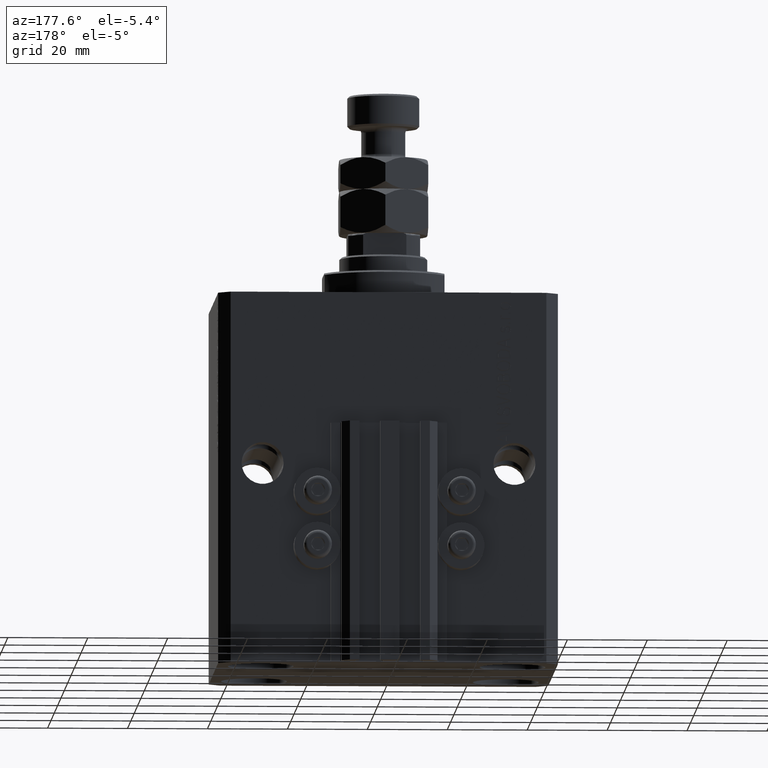
[diagram: clean part render]
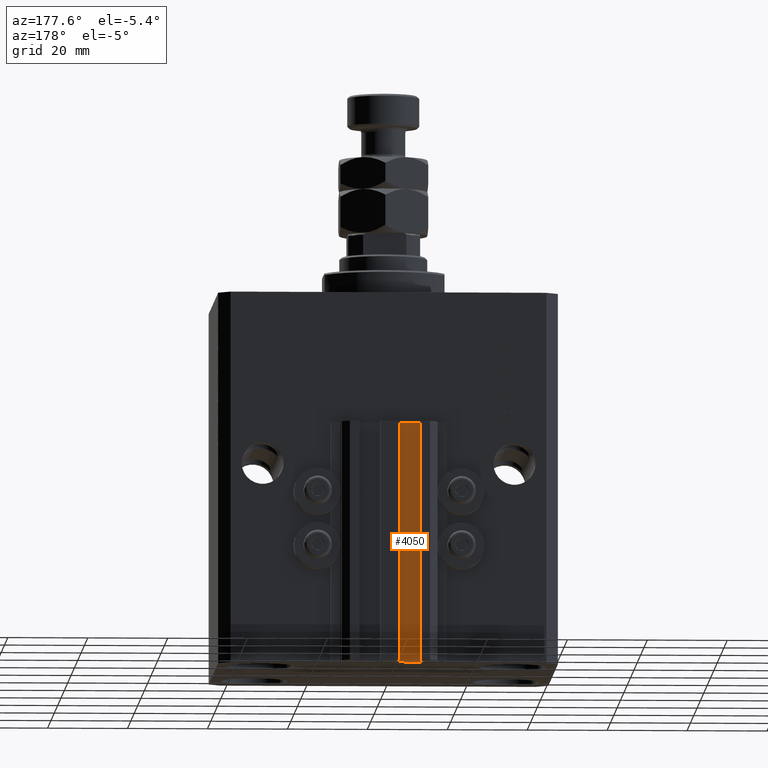
[diagram: same view with one face highlighted and labeled with its STEP entity id]
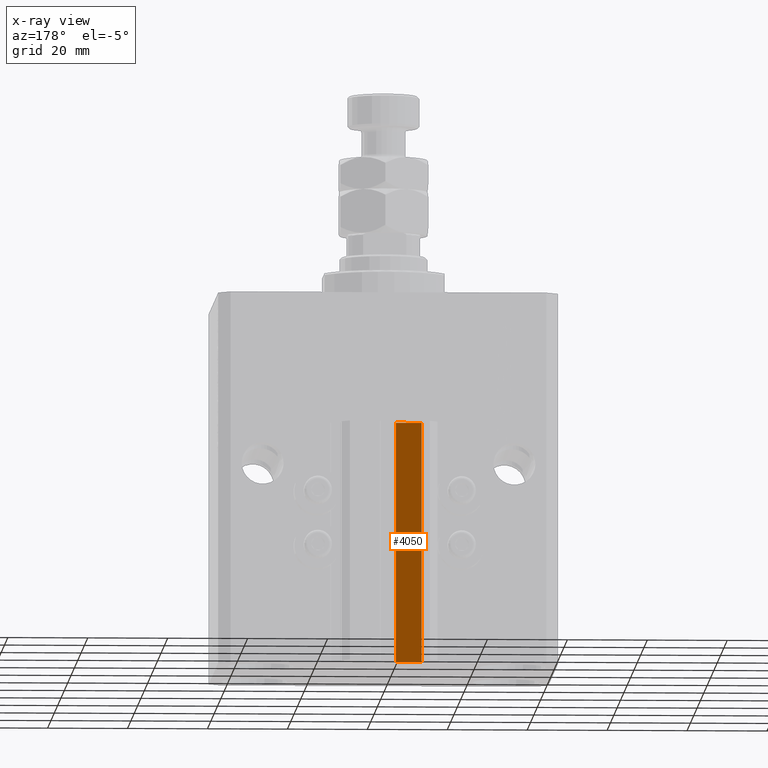
[diagram: x-ray of the same camera — body ghosted, the highlighted face saturated]
A machine part, auxiliary view. The second image highlights one B-rep face of the part: STEP entity #4050.
The next image is the same camera in x-ray: the body ghosted, the highlighted face saturated — about 0% of this face is hidden behind the body in this view.
In plain terms, the highlighted planar face has unit normal (0, 1, 0).
Its self-contained STEP definition (entity closure, byte-faithful):
#63 = VERTEX_POINT ( 'NONE', #27988 ) ;
#989 = LINE ( 'NONE', #23674, #37271 ) ;
#1173 = EDGE_CURVE ( 'NONE', #6701, #18676, #16166, .T. ) ;
#2845 = LINE ( 'NONE', #36481, #40840 ) ;
#4050 = ADVANCED_FACE ( 'NONE', ( #4529 ), #4775, .T. ) ;
#4529 = FACE_OUTER_BOUND ( 'NONE', #16980, .T. ) ;
#4717 = CARTESIAN_POINT ( 'NONE',  ( -8.199999999999997513, 33.50000000000000000, -93.00000000000000000 ) ) ;
#4775 = PLANE ( 'NONE',  #6717 ) ;
#5804 = VECTOR ( 'NONE', #18927, 1000.000000000000000 ) ;
#6701 = VERTEX_POINT ( 'NONE', #27671 ) ;
#6717 = AXIS2_PLACEMENT_3D ( 'NONE', #45872, #41903, #38404 ) ;
#8023 = ORIENTED_EDGE ( 'NONE', *, *, #1173, .T. ) ;
#9728 = ORIENTED_EDGE ( 'NONE', *, *, #37845, .F. ) ;
#9978 = ORIENTED_EDGE ( 'NONE', *, *, #36026, .F. ) ;
#9982 = VERTEX_POINT ( 'NONE', #25133 ) ;
#16166 = LINE ( 'NONE', #4717, #5804 ) ;
#16980 = EDGE_LOOP ( 'NONE', ( #9978, #9728, #26813, #8023 ) ) ;
#18676 = VERTEX_POINT ( 'NONE', #26023 ) ;
#18775 = DIRECTION ( 'NONE',  ( 0.000000000000000000, 0.000000000000000000, 1.000000000000000000 ) ) ;
#18927 = DIRECTION ( 'NONE',  ( 0.000000000000000000, 0.000000000000000000, 1.000000000000000000 ) ) ;
#20637 = EDGE_CURVE ( 'NONE', #63, #6701, #2845, .T. ) ;
#23674 = CARTESIAN_POINT ( 'NONE',  ( -1.800000000000000933, 33.50000000000000000, -33.00000000000000000 ) ) ;
#25133 = CARTESIAN_POINT ( 'NONE',  ( -1.800000000000000933, 33.50000000000000000, -33.00000000000000000 ) ) ;
#25396 = VECTOR ( 'NONE', #18775, 1000.000000000000000 ) ;
#26023 = CARTESIAN_POINT ( 'NONE',  ( -8.199999999999997513, 33.50000000000000000, -33.00000000000000000 ) ) ;
#26258 = CARTESIAN_POINT ( 'NONE',  ( -1.800000000000000933, 33.50000000000000000, -93.00000000000000000 ) ) ;
#26813 = ORIENTED_EDGE ( 'NONE', *, *, #20637, .T. ) ;
#27001 = LINE ( 'NONE', #26258, #25396 ) ;
#27671 = CARTESIAN_POINT ( 'NONE',  ( -8.199999999999997513, 33.50000000000000000, -93.00000000000000000 ) ) ;
#27988 = CARTESIAN_POINT ( 'NONE',  ( -1.800000000000000933, 33.50000000000000000, -93.00000000000000000 ) ) ;
#29748 = DIRECTION ( 'NONE',  ( -1.000000000000000000, 0.000000000000000000, 0.000000000000000000 ) ) ;
#36026 = EDGE_CURVE ( 'NONE', #9982, #18676, #989, .T. ) ;
#36481 = CARTESIAN_POINT ( 'NONE',  ( -1.800000000000000933, 33.50000000000000000, -93.00000000000000000 ) ) ;
#37271 = VECTOR ( 'NONE', #38866, 1000.000000000000000 ) ;
#37845 = EDGE_CURVE ( 'NONE', #63, #9982, #27001, .T. ) ;
#38404 = DIRECTION ( 'NONE',  ( 0.000000000000000000, 0.000000000000000000, 1.000000000000000000 ) ) ;
#38866 = DIRECTION ( 'NONE',  ( -1.000000000000000000, 0.000000000000000000, 0.000000000000000000 ) ) ;
#40840 = VECTOR ( 'NONE', #29748, 1000.000000000000000 ) ;
#41903 = DIRECTION ( 'NONE',  ( 0.000000000000000000, 1.000000000000000000, -0.000000000000000000 ) ) ;
#45872 = CARTESIAN_POINT ( 'NONE',  ( -1.800000000000000933, 33.50000000000000000, -93.00000000000000000 ) ) ;